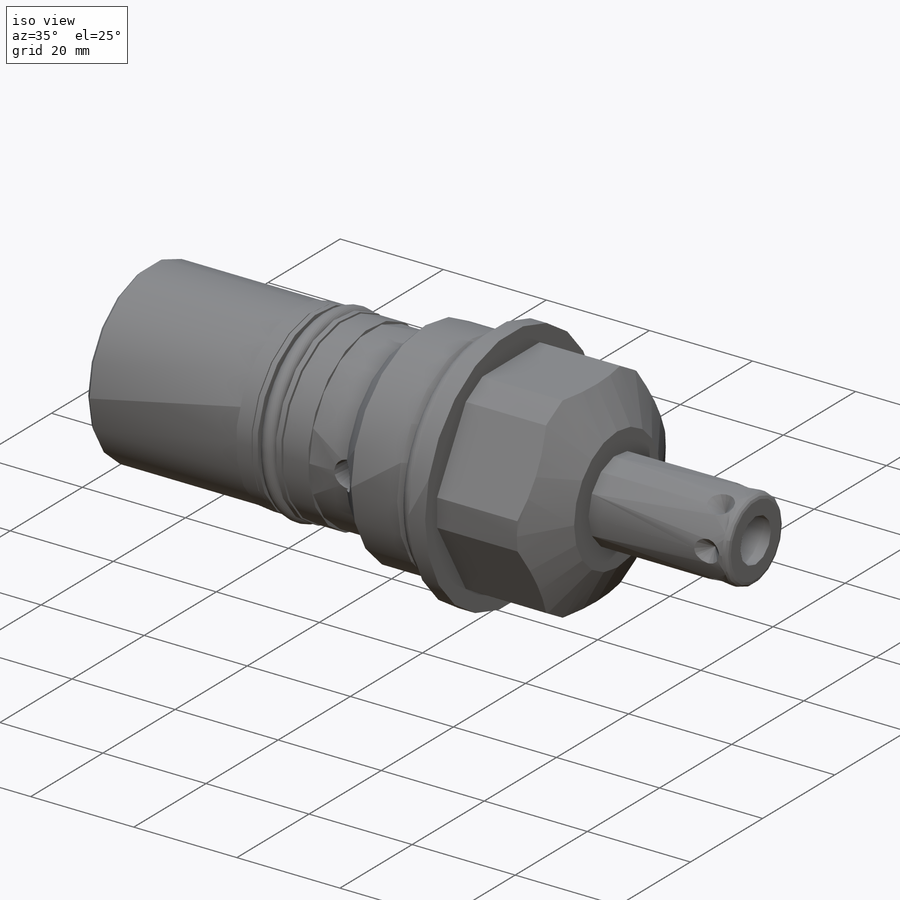
[diagram: iso view]
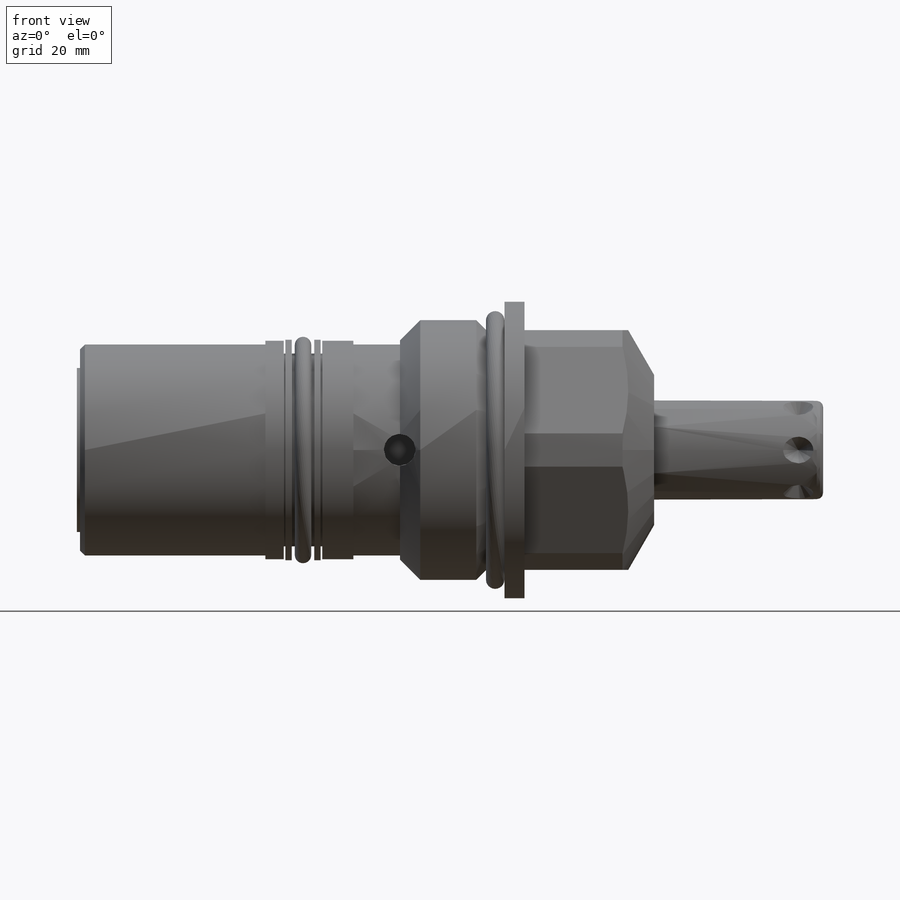
[diagram: front view]
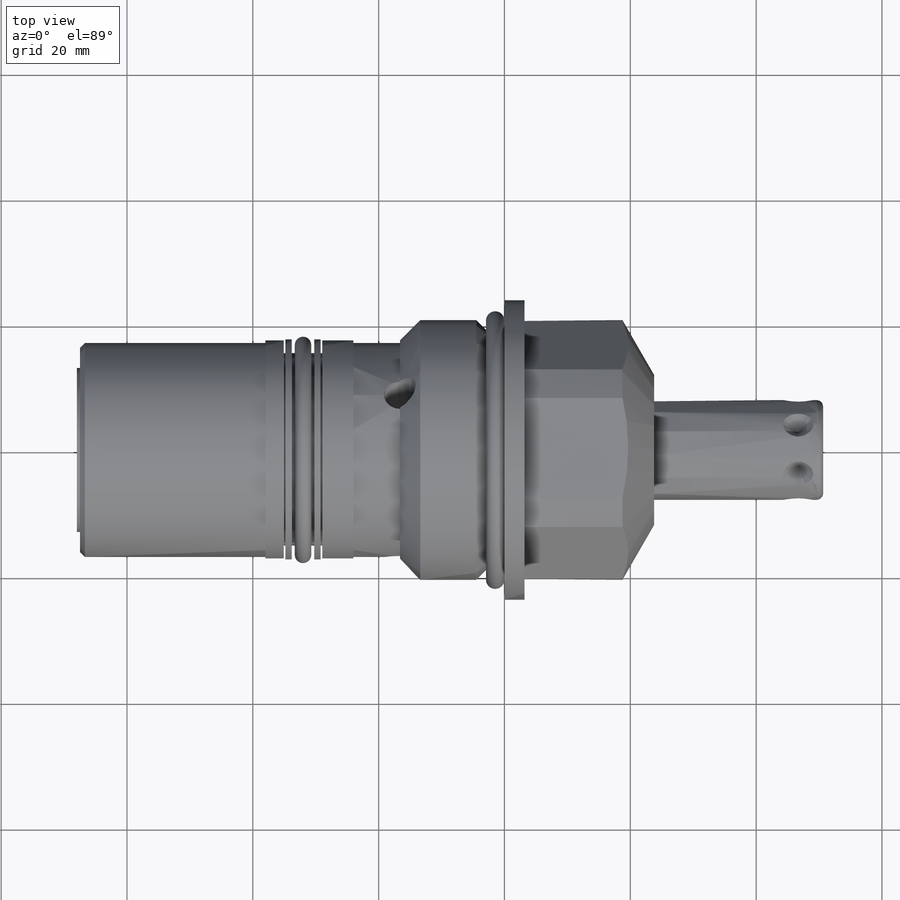
[diagram: top view]
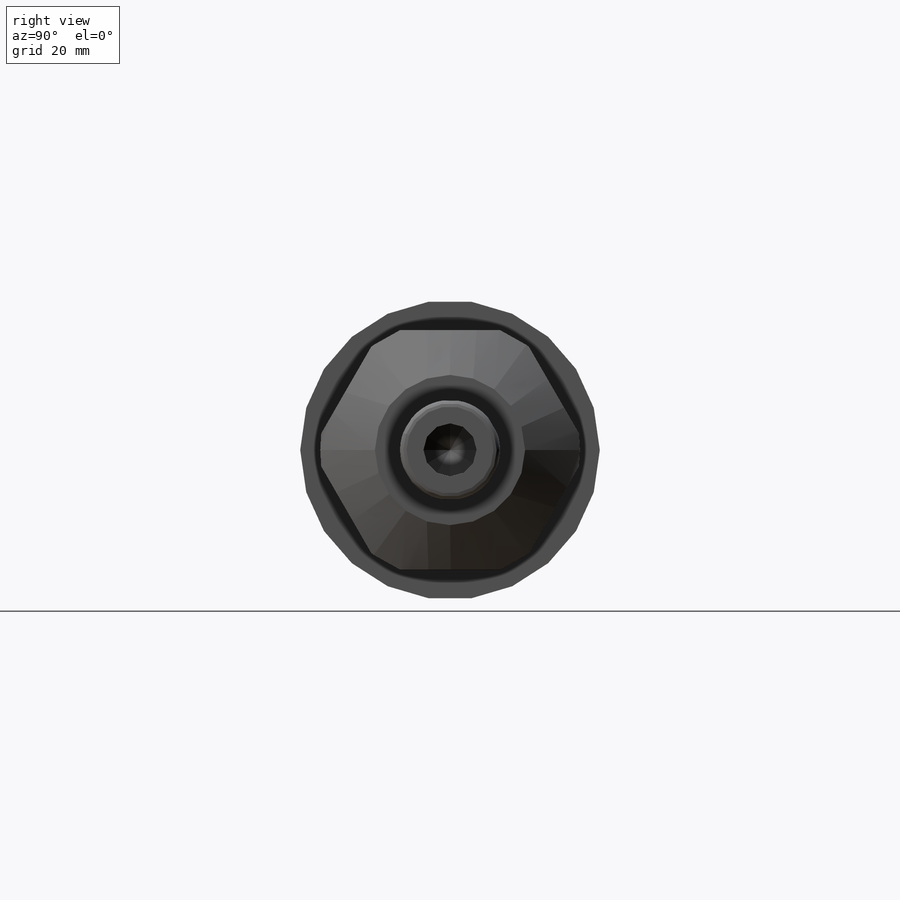
[diagram: right view]
SOLIDWORKS PART (.sldprt)
format: sldprt  version: not decoded by parser v0  size: 442,368 bytes
history: native  units: mm
features: sketch x15, revolve x6, cut_revolve x5, cut_extrude x3, pattern_circular x2, material x1, chamfer x1, extrude x1 (+13 scaffold rows collapsed)
feature tree (47):
  scaffold x13  (default folders/planes/origin — collapsed)
  material  "Alloy Steel"
  sketch  "Sketch1"  dims[c1.D1=47.625mm c1.D2=23.876mm c1.D3=3.175mm c1.D4=23.7744mm c1.D5=41.275mm c1.D6=~46.717802mm c2.D6=30.0deg c2.D7=67.4624mm c2.D8=2.7178mm c2.D9=38.2778mm c2.D10=~47.278271mm c3.D10=45.0deg c3.D11=41.275mm c3.D12=13.6398mm c3.D8=64.4906mm c3.D13=34.8488mm c3.D14=34.036mm]
  revolve  "Revolve1"  Angle=360deg
  sketch  "Sketch2"  dims[D1=38.1mm]
  cut_extrude  "Cut-Extrude1"  [1 undecoded]
  sketch  "Sketch3"  dims[D1=1.016mm D2=50.6476mm D3=15.875mm]
  revolve  "Revolve2"  Angle=360deg
  sketch  "Sketch4"  dims[c1.D1=3.9624mm c1.D2=~2.455301mm c2.D2=45.0deg c2.D3=4.826mm]
  cut_revolve  "Cut-Revolve1"  Angle=360deg
  pattern_circular  "CirPattern1"  Count=6 Angle=360deg
  sketch  "Sketch5"  dims[c1.D1=15.24mm c1.D2=~3.320186mm c2.D2=59.0deg c2.D3=8.4328mm]
  cut_revolve  "Cut-Revolve2"  Angle=360deg
  sketch  "Sketch6"  dims[D1=13.97mm D2=34.8488mm D3=29.464mm]
  revolve  "Revolve3"  Angle=360deg
  sketch  "Sketch7"  dims[D1=6.2738mm]
  cut_extrude  "Cut-Extrude2"  Depth=0.762mm
  sketch  "Sketch8"  dims[D1=6.1087mm D2=32.385mm D3=30.7848mm]
  cut_revolve  "Cut-Revolve3"  Angle=360deg
  sketch  "Sketch9"  dims[D1=1.016mm D2=0.254mm D3=2.1844mm]
  revolve  "Revolve4"  Angle=360deg
  sketch  "Sketch10"  dims[D1=50.8mm D2=5.0546mm D3=7.9375mm]
  cut_revolve  "Cut-Revolve4"  Angle=360deg
  pattern_circular  "CirPattern2"  Count=3 Angle=360deg
  chamfer  "Chamfer1"  Distance=0.762mm Angle=45deg
  sketch  "Sketch11"  dims[D1=~15.025741mm D2=41.2242mm]
  revolve  "Revolve5"  Angle=360deg
  sketch  "Sketch12"  dims[D1=2.6162mm]
  revolve  "Revolve7"  Angle=360deg
  sketch  "Sketch13"  dims[c1.D1=~2.659019mm c2.D1=12.0deg c2.D2=12.3698mm c2.D3=~2.758071mm c3.D3=45.0deg c3.D4=2.5654mm c3.D5=9.9568mm c3.D6=14.2748mm]
  cut_revolve  "Cut-Revolve5"  Angle=360deg
  sketch  "Sketch14"  dims[D1=~12.126722mm]
  extrude  "Extrude1"  Depth=0.508mm
  sketch  "Sketch15"  dims[D1=6.0225mm]
  cut_extrude  "Cut-Extrude3"  Depth=0.508mm
decode coverage: 32 of 33 modeling features carry decoded parameters
note: ~ marks probable driven/reference dimensions
note: 1 parameter value undecoded
note: suppression state not decoded; provenance and decode notes live in map.json
